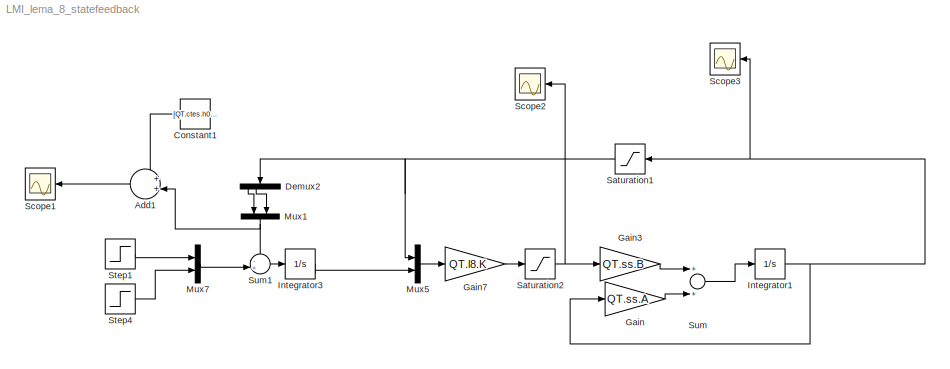
MODEL LMI_lema_8_statefeedback
KIND model
BLOCK [Sum] Add1
  IconShape = round
  InputSameDT = off
  Inputs = ++|
  OutDataTypeStr = Inherit: Inherit via internal rule
  Ports = [2, 1]
  SID = 169
  SaturateOnIntegerOverflow = off
BLOCK [Constant] Constant1
  SID = 170
  Value = [QT.ctes.h0(1) QT.ctes.h0(2)]
BLOCK [Demux] Demux2
  DisplayOption = bar
  Ports = [1, 4]
  SID = 140
BLOCK [Gain] Gain
  Gain = QT.ss.A
  Multiplication = Matrix(K*u)
  OutDataTypeStr = Inherit: Inherit via internal rule
  ParamDataTypeStr = Inherit: Inherit via internal rule
  SID = 141
  SaturateOnIntegerOverflow = off
BLOCK [Gain] Gain3
  Gain = QT.ss.B
  Multiplication = Matrix(K*u)
  OutDataTypeStr = Inherit: Inherit via internal rule
  ParamDataTypeStr = Inherit: Inherit via internal rule
  SID = 142
  SaturateOnIntegerOverflow = off
BLOCK [Gain] Gain7
  Gain = QT.l8.K
  Multiplication = Matrix(K*u)
  OutDataTypeStr = Inherit: Inherit via internal rule
  ParamDataTypeStr = Inherit: Inherit via internal rule
  SID = 143
  SaturateOnIntegerOverflow = off
BLOCK [Integrator] Integrator1
  Ports = [1, 1]
  SID = 144
BLOCK [Integrator] Integrator3
  Ports = [1, 1]
  SID = 145
BLOCK [Mux] Mux1
  DisplayOption = bar
  Inputs = 2
  Ports = [2, 1]
  SID = 146
BLOCK [Mux] Mux5
  DisplayOption = bar
  Inputs = 2
  Ports = [2, 1]
  SID = 148
BLOCK [Mux] Mux7
  DisplayOption = bar
  Inputs = 2
  Ports = [2, 1]
  SID = 171
BLOCK [Saturate] Saturation1
  InputPortMap = u0
  LowerLimit = -10
  Ports = [1, 1]
  SID = 167
  UpperLimit = 10
BLOCK [Saturate] Saturation2
  InputPortMap = u0
  LowerLimit = -1.5
  Ports = [1, 1]
  SID = 168
  UpperLimit = +1.5
BLOCK [Scope] Scope1
  DataFormat = StructureWithTime
  Floating = off
  LimitDataPoints = off
  NumInputPorts = 1
  Ports = [1]
  SID = 172
  SampleTime = 0
  SaveName = Simulado
  SaveToWorkspace = on
  TimeRange = 10
BLOCK [Scope] Scope2
  DataFormat = StructureWithTime
  Floating = off
  NumInputPorts = 1
  Ports = [1]
  SID = 154
  SampleTime = 1
  SaveName = ScopeData1
  TimeRange = 100
  YMax = 0.2
  YMin = -1.1
BLOCK [Scope] Scope3
  DataFormat = StructureWithTime
  Floating = off
  NumInputPorts = 1
  Ports = [1]
  SID = 162
  SampleTime = 1
  SaveName = ScopeData2
  TimeRange = 100
  YMax = 1
  YMin = 0
BLOCK [Step] Step1
  SID = 173
  SampleTime = 0
  Time = 300
BLOCK [Step] Step4
  SID = 174
  SampleTime = 0
  Time = 1100
BLOCK [Sum] Sum
  InputSameDT = off
  OutDataTypeStr = Inherit: Inherit via internal rule
  Ports = [2, 1]
  SID = 152
  SaturateOnIntegerOverflow = off
BLOCK [Sum] Sum1
  IconShape = round
  InputSameDT = off
  Inputs = -+|
  OutDataTypeStr = Inherit: Inherit via internal rule
  Ports = [2, 1]
  SID = 153
  SaturateOnIntegerOverflow = off
LINE Add1:1 -> Scope1:1
LINE Constant1:1 -> Add1:1
LINE Demux2:1 -> Mux1:1
LINE Demux2:2 -> Mux1:2
LINE Gain3:1 -> Sum:1
LINE Gain7:1 -> Saturation2:1
LINE Gain:1 -> Sum:2
NET Integrator1:1 -> Gain:1, Saturation1:1, Scope3:1
LINE Integrator3:1 -> Mux5:2
NET Mux1:1 -> Add1:2, Sum1:1
LINE Mux5:1 -> Gain7:1
LINE Mux7:1 -> Sum1:2
NET Saturation1:1 -> Demux2:1, Mux5:1
NET Saturation2:1 -> Gain3:1, Scope2:1
LINE Step1:1 -> Mux7:1
LINE Step4:1 -> Mux7:2
LINE Sum1:1 -> Integrator3:1
LINE Sum:1 -> Integrator1:1
note: NET lines group one-source signal fan-out (src -> all destinations, sorted); 1:1 wires keep LINE
